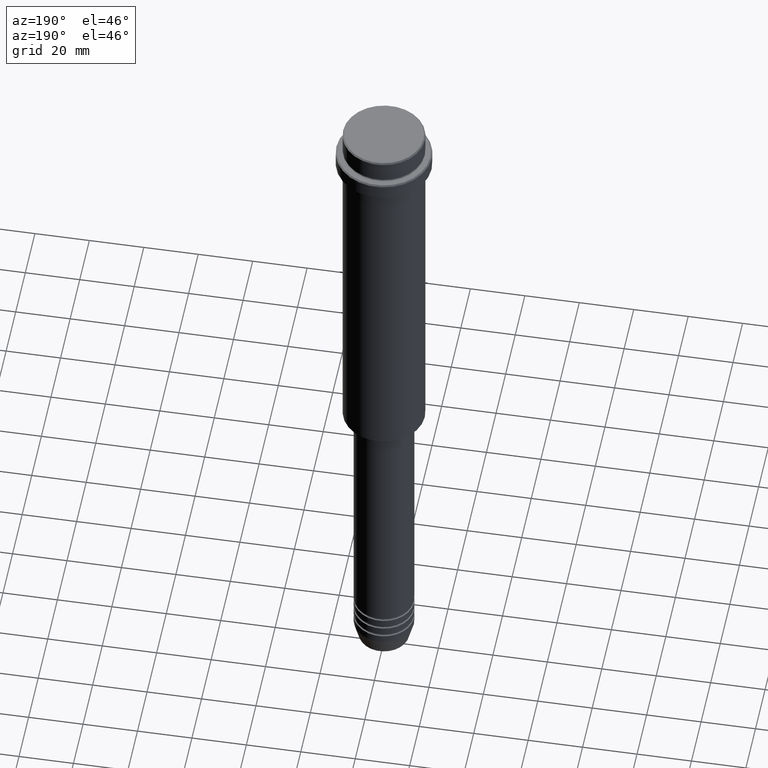
[diagram: clean part render]
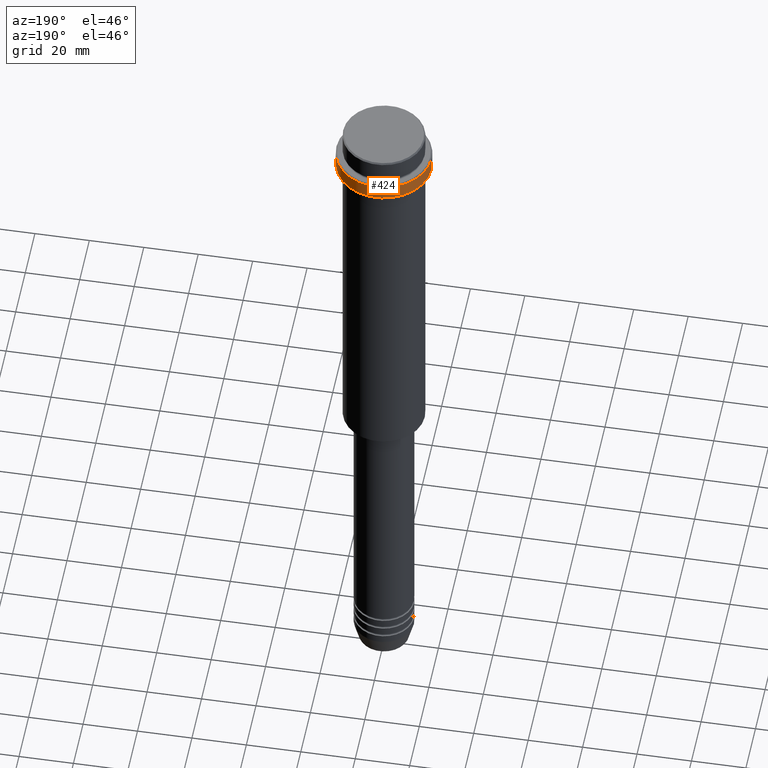
[diagram: same view with one face highlighted and labeled with its STEP entity id]
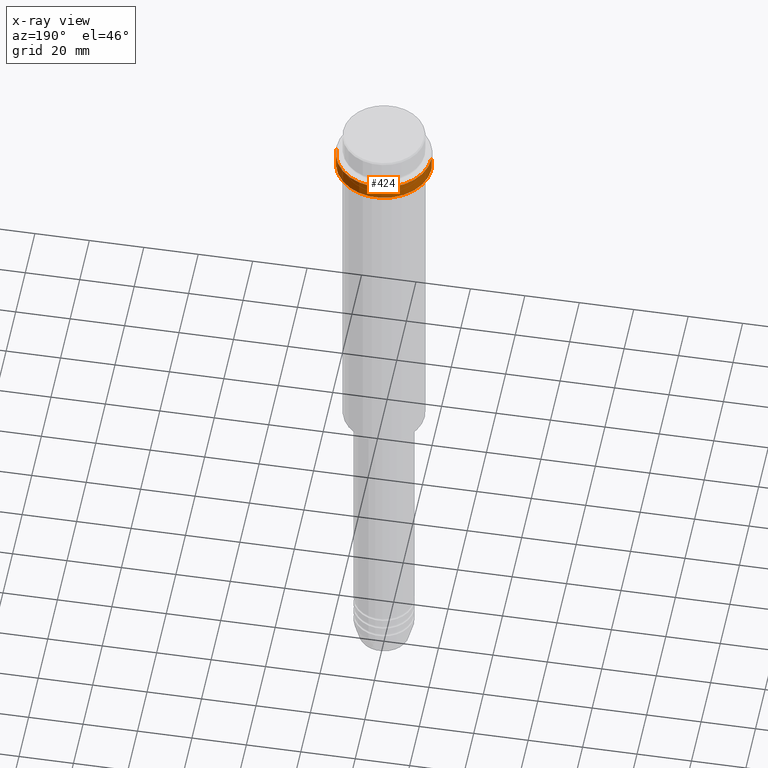
[diagram: x-ray of the same camera — body ghosted, the highlighted face saturated]
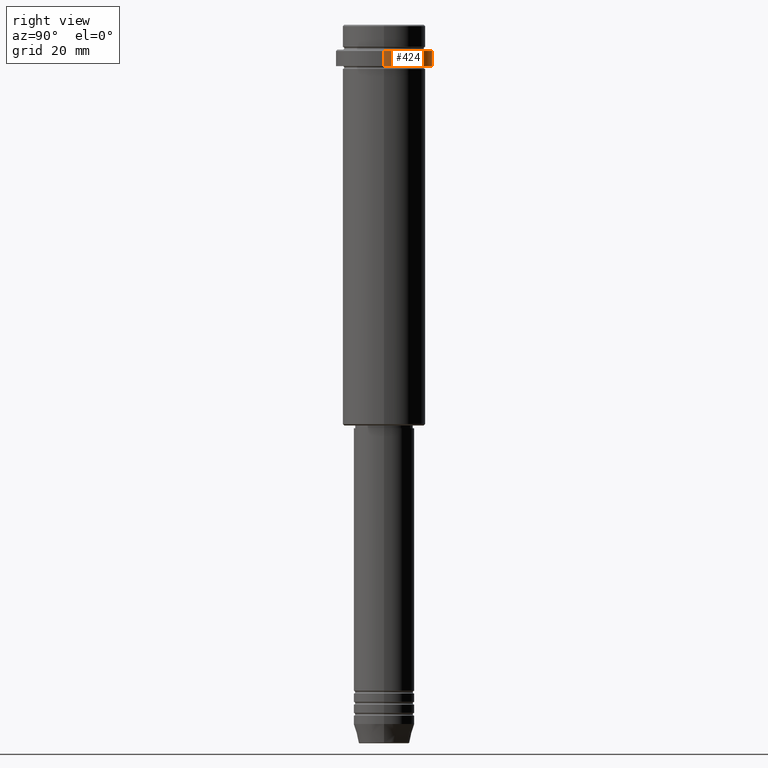
[diagram: same view with one face highlighted and labeled with its STEP entity id]
A machine part, auxiliary view. The second image highlights one B-rep face of the part: STEP entity #424.
The next image is the same camera in x-ray: the body ghosted, the highlighted face saturated — about 0% of this face is hidden behind the body in this view.
A second angle (right view) of the same face is appended — the face is thin or edge-on in the first view.
In plain terms, the highlighted cylindrical surface (partial cylindrical patch) has radius 17.5 mm, axis along (-0, -0, 1).
Its self-contained STEP definition (entity closure, byte-faithful):
#47 = AXIS2_PLACEMENT_3D ( 'NONE', #1022, #921, #593 ) ;
#57 = CARTESIAN_POINT ( 'NONE',  ( 17.50000000000000000, 0.000000000000000000, -15.00000000000000178 ) ) ;
#69 = VERTEX_POINT ( 'NONE', #680 ) ;
#120 = VERTEX_POINT ( 'NONE', #1154 ) ;
#160 = EDGE_CURVE ( 'NONE', #120, #69, #539, .T. ) ;
#165 = AXIS2_PLACEMENT_3D ( 'NONE', #279, #837, #932 ) ;
#222 = VECTOR ( 'NONE', #1155, 1000.000000000000000 ) ;
#279 = CARTESIAN_POINT ( 'NONE',  ( 0.000000000000000000, 0.000000000000000000, 0.000000000000000000 ) ) ;
#311 = CIRCLE ( 'NONE', #47, 17.50000000000000000 ) ;
#377 = AXIS2_PLACEMENT_3D ( 'NONE', #796, #1236, #391 ) ;
#391 = DIRECTION ( 'NONE',  ( 1.000000000000000000, 0.000000000000000000, 0.000000000000000000 ) ) ;
#424 = ADVANCED_FACE ( 'NONE', ( #488 ), #911, .T. ) ;
#488 = FACE_OUTER_BOUND ( 'NONE', #1368, .T. ) ;
#539 = LINE ( 'NONE', #660, #1415 ) ;
#547 = DIRECTION ( 'NONE',  ( -0.000000000000000000, -0.000000000000000000, 1.000000000000000000 ) ) ;
#593 = DIRECTION ( 'NONE',  ( 1.000000000000000000, 0.000000000000000000, 0.000000000000000000 ) ) ;
#660 = CARTESIAN_POINT ( 'NONE',  ( -17.50000000000000000, 2.143131898507868248E-15, 0.000000000000000000 ) ) ;
#680 = CARTESIAN_POINT ( 'NONE',  ( -17.50000000000000000, 2.143131898507868248E-15, -9.500000000000001776 ) ) ;
#700 = ORIENTED_EDGE ( 'NONE', *, *, #160, .T. ) ;
#713 = ORIENTED_EDGE ( 'NONE', *, *, #1303, .T. ) ;
#757 = EDGE_CURVE ( 'NONE', #1232, #120, #311, .T. ) ;
#796 = CARTESIAN_POINT ( 'NONE',  ( 0.000000000000000000, 0.000000000000000000, -9.500000000000001776 ) ) ;
#825 = CARTESIAN_POINT ( 'NONE',  ( 17.50000000000000000, 0.000000000000000000, -9.500000000000001776 ) ) ;
#837 = DIRECTION ( 'NONE',  ( -0.000000000000000000, -0.000000000000000000, 1.000000000000000000 ) ) ;
#845 = CIRCLE ( 'NONE', #377, 17.50000000000000000 ) ;
#911 = CYLINDRICAL_SURFACE ( 'NONE', #165, 17.50000000000000000 ) ;
#921 = DIRECTION ( 'NONE',  ( -0.000000000000000000, -0.000000000000000000, 1.000000000000000000 ) ) ;
#932 = DIRECTION ( 'NONE',  ( 1.000000000000000000, 0.000000000000000000, 0.000000000000000000 ) ) ;
#1005 = ORIENTED_EDGE ( 'NONE', *, *, #757, .T. ) ;
#1022 = CARTESIAN_POINT ( 'NONE',  ( 0.000000000000000000, 0.000000000000000000, -15.00000000000000178 ) ) ;
#1154 = CARTESIAN_POINT ( 'NONE',  ( -17.50000000000000000, 2.143131898507868248E-15, -15.00000000000000178 ) ) ;
#1155 = DIRECTION ( 'NONE',  ( -0.000000000000000000, -0.000000000000000000, 1.000000000000000000 ) ) ;
#1163 = CARTESIAN_POINT ( 'NONE',  ( 17.50000000000000000, 0.000000000000000000, 0.000000000000000000 ) ) ;
#1171 = LINE ( 'NONE', #1163, #222 ) ;
#1232 = VERTEX_POINT ( 'NONE', #57 ) ;
#1236 = DIRECTION ( 'NONE',  ( 0.000000000000000000, 0.000000000000000000, -1.000000000000000000 ) ) ;
#1303 = EDGE_CURVE ( 'NONE', #69, #1347, #845, .T. ) ;
#1338 = ORIENTED_EDGE ( 'NONE', *, *, #1358, .F. ) ;
#1347 = VERTEX_POINT ( 'NONE', #825 ) ;
#1358 = EDGE_CURVE ( 'NONE', #1232, #1347, #1171, .T. ) ;
#1368 = EDGE_LOOP ( 'NONE', ( #1005, #700, #713, #1338 ) ) ;
#1415 = VECTOR ( 'NONE', #547, 1000.000000000000000 ) ;